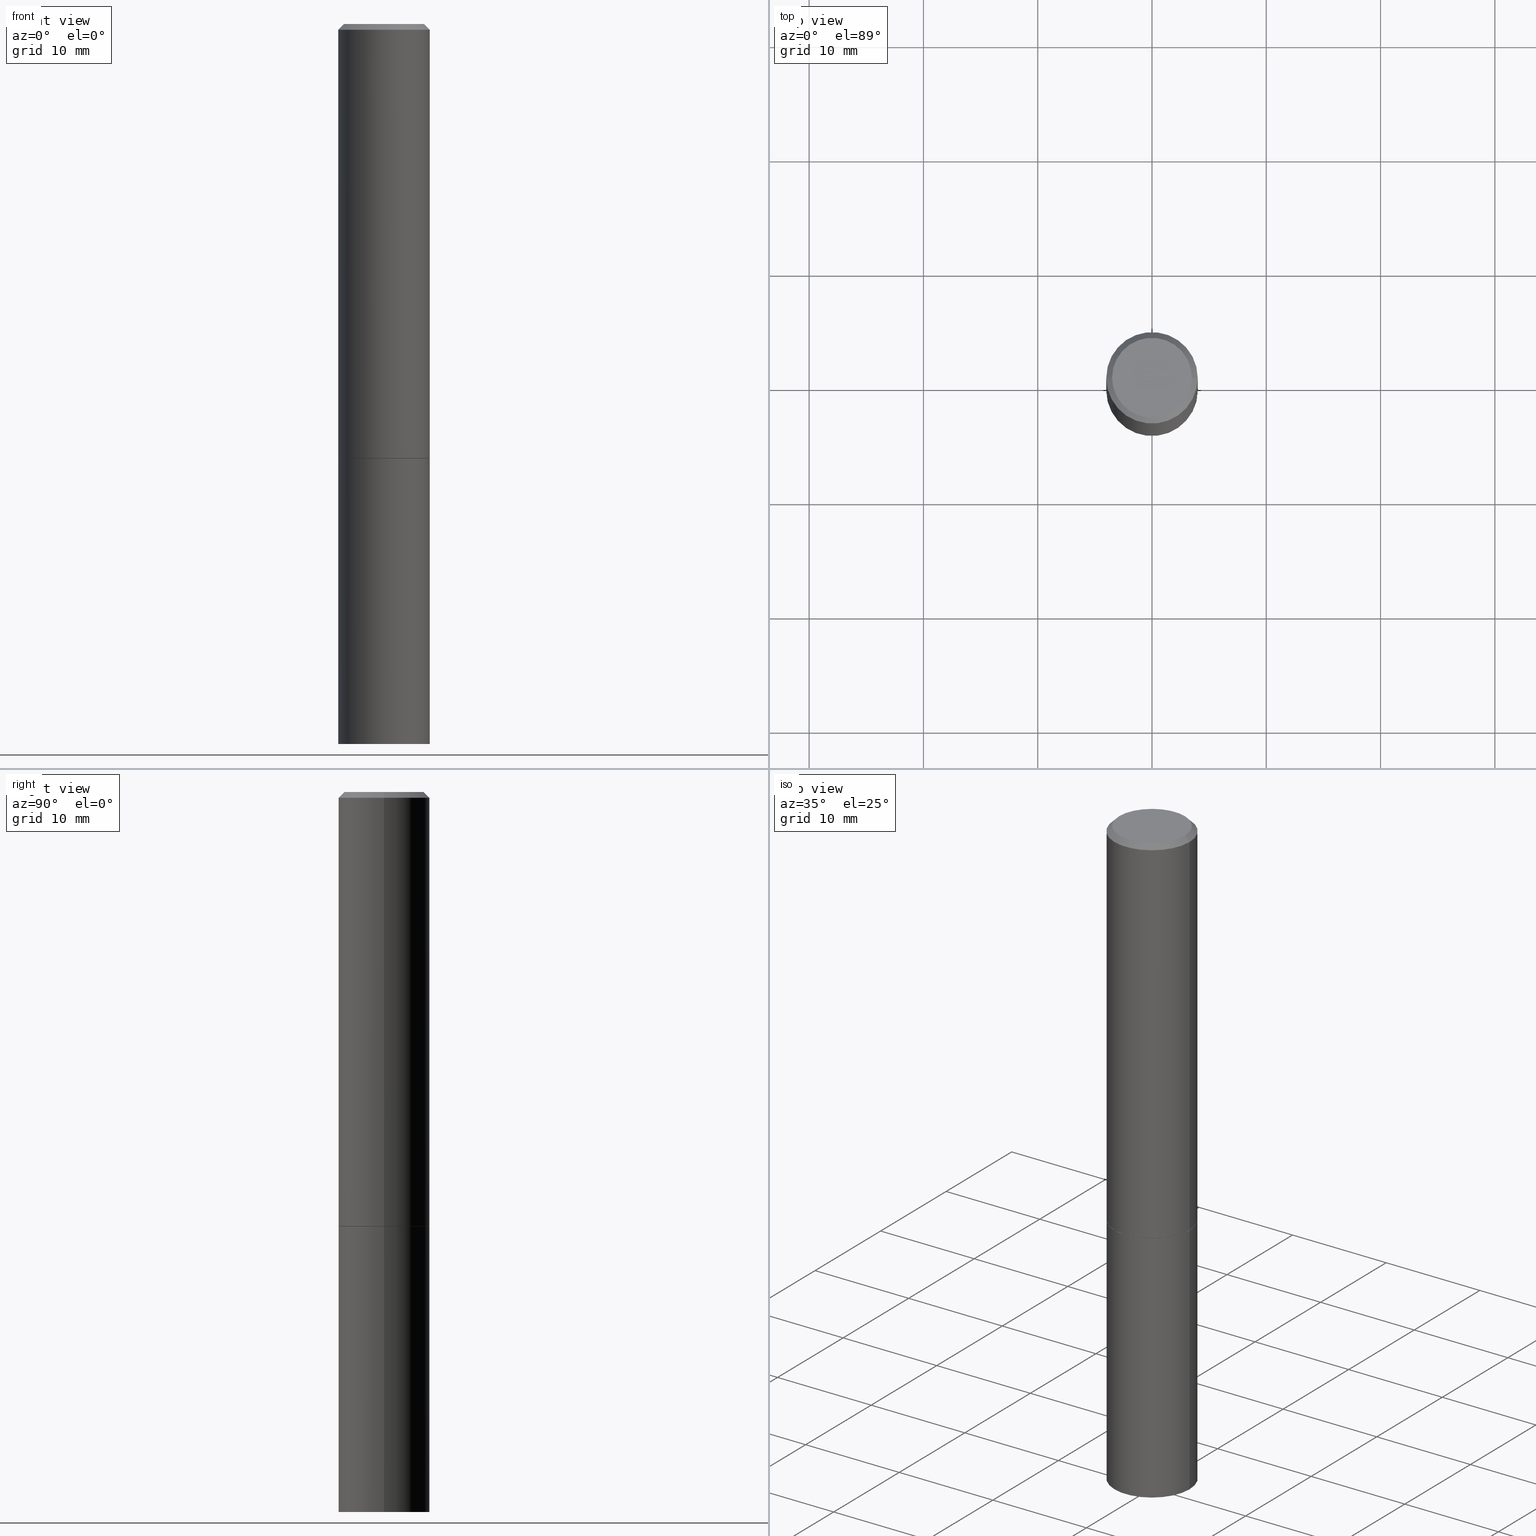
[diagram: canonical four-view strip — front | top / right | iso, engineering-drawing reading convention]
A machine part, canonical four-view strip (front | top / right | iso — engineering-drawing reading convention). The complete STEP part file that produces these views, byte-faithful:
ISO-10303-21;
HEADER;
FILE_DESCRIPTION (( 'STEP AP203' ),
    '1' );
FILE_NAME ('83106.STEP',
    '2024-02-29T23:53:22',
    ( '' ),
    ( '' ),
    'SwSTEP 2.0',
    'SolidWorks 2023',
    '' );
FILE_SCHEMA (( 'CONFIG_CONTROL_DESIGN' ));
ENDSEC;

DATA;
#1 = VECTOR ( 'NONE', #203, 39.37007874015748143 ) ;
#2 = VERTEX_POINT ( 'NONE', #121 ) ;
#3 = PERSON_AND_ORGANIZATION ( #52, #255 ) ;
#4 = ORIENTED_EDGE ( 'NONE', *, *, #162, .F. ) ;
#5 = CARTESIAN_POINT ( 'NONE',  ( 0.1575000000000000011, -1.099816621735586889E-15, 7.679978421878598033E-30 ) ) ;
#6 = PRODUCT ( '83106', '83106', '', ( #195 ) ) ;
#7 = ORIENTED_EDGE ( 'NONE', *, *, #181, .T. ) ;
#8 = ADVANCED_FACE ( 'NONE', ( #44 ), #315, .F. ) ;
#9 = CARTESIAN_POINT ( 'NONE',  ( 0.1574999999999998346, -1.150358061425878091E-15, -0.02000000000000003511 ) ) ;
#10 = VERTEX_POINT ( 'NONE', #261 ) ;
#11 = EDGE_CURVE ( 'NONE', #226, #10, #337, .T. ) ;
#12 = PERSON_AND_ORGANIZATION ( #52, #255 ) ;
#13 = CYLINDRICAL_SURFACE ( 'NONE', #324, 0.1574999999999998901 ) ;
#14 = CC_DESIGN_DATE_AND_TIME_ASSIGNMENT ( #310, #172, ( #27 ) ) ;
#15 = APPROVAL_STATUS ( 'not_yet_approved' ) ;
#16 = DIRECTION ( 'NONE',  ( -2.445468806185136597E-29, 3.491481338843145583E-15, 1.000000000000000000 ) ) ;
#17 = SHAPE_DEFINITION_REPRESENTATION ( #147, #285 ) ;
#18 = DIRECTION ( 'NONE',  ( -2.445468806185136597E-29, 3.491481338843145583E-15, 1.000000000000000000 ) ) ;
#19 = CC_DESIGN_SECURITY_CLASSIFICATION ( #317, ( #343 ) ) ;
#20 = LINE ( 'NONE', #5, #118 ) ;
#21 = CARTESIAN_POINT ( 'NONE',  ( -0.1575000000000000011, -5.822483814998842744E-15, -2.480300000000000171 ) ) ;
#22 = DIRECTION ( 'NONE',  ( 1.000000000000000000, -6.982962677686265922E-15, 4.876176775795935232E-29 ) ) ;
#23 = AXIS2_PLACEMENT_3D ( 'NONE', #38, #257, #294 ) ;
#24 = FACE_OUTER_BOUND ( 'NONE', #45, .T. ) ;
#25 = CARTESIAN_POINT ( 'NONE',  ( -0.1565000000000000002, -4.111256701444791131E-15, -1.496000000000000663 ) ) ;
#26 = APPROVAL_ROLE ( '' ) ;
#27 = PRODUCT_DEFINITION ( 'UNKNOWN', '', #343, #90 ) ;
#28 = CIRCLE ( 'NONE', #227, 0.1574999999999998346 ) ;
#29 = AXIS2_PLACEMENT_3D ( 'NONE', #71, #235, #351 ) ;
#30 = ORIENTED_EDGE ( 'NONE', *, *, #333, .T. ) ;
#31 = APPLICATION_CONTEXT ( 'configuration controlled 3d designs of mechanical parts and assemblies' ) ;
#32 = EDGE_CURVE ( 'NONE', #145, #60, #344, .T. ) ;
#33 = ORIENTED_EDGE ( 'NONE', *, *, #34, .F. ) ;
#34 = EDGE_CURVE ( 'NONE', #253, #2, #330, .T. ) ;
#35 = LOCAL_TIME ( 18, 53, 22.00000000000000000, #127 ) ;
#36 = ORIENTED_EDGE ( 'NONE', *, *, #328, .F. ) ;
#37 = DIRECTION ( 'NONE',  ( 0.7071067811865466846, -7.319954787623252890E-15, -0.7071067811865483499 ) ) ;
#38 = CARTESIAN_POINT ( 'NONE',  ( 3.658421334052965846E-29, -5.223256082909347726E-15, -1.496000000000000663 ) ) ;
#39 = PERSON_AND_ORGANIZATION ( #52, #255 ) ;
#40 = CONICAL_SURFACE ( 'NONE', #312, 0.1574999999999998346, 0.7853981633974471688 ) ;
#41 = CARTESIAN_POINT ( 'NONE',  ( -0.1575000000000000011, -5.822483814998842744E-15, -1.496000000000000441 ) ) ;
#42 = CALENDAR_DATE ( 2024, 29, 2 ) ;
#43 = ORIENTED_EDGE ( 'NONE', *, *, #352, .F. ) ;
#44 = FACE_OUTER_BOUND ( 'NONE', #192, .T. ) ;
#45 = EDGE_LOOP ( 'NONE', ( #4, #276 ) ) ;
#46 = AXIS2_PLACEMENT_3D ( 'NONE', #301, #213, #271 ) ;
#47 = DIRECTION ( 'NONE',  ( -2.445468806185136877E-29, 3.491481338843145188E-15, 1.000000000000000000 ) ) ;
#48 = DIRECTION ( 'NONE',  ( -2.445468806185136597E-29, 3.491481338843145583E-15, 1.000000000000000000 ) ) ;
#49 = FACE_OUTER_BOUND ( 'NONE', #216, .T. ) ;
#50 = APPROVAL ( #140, 'UNSPECIFIED' ) ;
#51 = CARTESIAN_POINT ( 'NONE',  ( -0.1565000000000000002, -4.105958247096567940E-15, -1.496000000000000663 ) ) ;
#52 = PERSON ( 'UNSPECIFIED', 'UNSPECIFIED', 'UNSPECIFIED', ('UNSPECIFIED'), ('UNSPECIFIED'), ('UNSPECIFIED') ) ;
#53 = EDGE_CURVE ( 'NONE', #194, #87, #212, .T. ) ;
#54 = APPLICATION_PROTOCOL_DEFINITION ( 'international standard', 'config_control_design', 1994, #31 ) ;
#55 = AXIS2_PLACEMENT_3D ( 'NONE', #229, #231, #193 ) ;
#56 = ORIENTED_EDGE ( 'NONE', *, *, #57, .F. ) ;
#57 = EDGE_CURVE ( 'NONE', #225, #60, #28, .T. ) ;
#58 = EDGE_LOOP ( 'NONE', ( #91, #307 ) ) ;
#59 = CYLINDRICAL_SURFACE ( 'NONE', #55, 0.1575000000000000011 ) ;
#60 = VERTEX_POINT ( 'NONE', #152 ) ;
#61 =( LENGTH_UNIT ( ) NAMED_UNIT ( * ) SI_UNIT ( $, .METRE. ) );
#62 = ORIENTED_EDGE ( 'NONE', *, *, #283, .T. ) ;
#63 = DIRECTION ( 'NONE',  ( 1.000000000000000000, 0.000000000000000000, 0.000000000000000000 ) ) ;
#64 = FACE_OUTER_BOUND ( 'NONE', #336, .T. ) ;
#65 = CARTESIAN_POINT ( 'NONE',  ( 0.000000000000000000, 0.000000000000000000, 0.000000000000000000 ) ) ;
#66 = CC_DESIGN_PERSON_AND_ORGANIZATION_ASSIGNMENT ( #101, #239, ( #343 ) ) ;
#67 = DIRECTION ( 'NONE',  ( 1.000000000000000000, -6.982962677686268288E-15, 0.000000000000000000 ) ) ;
#68 = MANIFOLD_SOLID_BREP ( 'Body-Move/Copy2[1]', #141 ) ;
#69 = VECTOR ( 'NONE', #37, 39.37007874015748143 ) ;
#70 = DIRECTION ( 'NONE',  ( 1.000000000000000000, -6.982962677686265922E-15, 0.000000000000000000 ) ) ;
#71 = CARTESIAN_POINT ( 'NONE',  ( 4.890937612370281041E-31, -6.982962677686302702E-17, -0.02000000000000003511 ) ) ;
#72 = ADVANCED_FACE ( 'NONE', ( #64 ), #13, .T. ) ;
#73 = DATE_AND_TIME ( #258, #280 ) ;
#74 = DIRECTION ( 'NONE',  ( -0.7071067811865466846, 2.468850131082247989E-15, -0.7071067811865483499 ) ) ;
#75 = CC_DESIGN_DATE_AND_TIME_ASSIGNMENT ( #260, #320, ( #317 ) ) ;
#76 = EDGE_CURVE ( 'NONE', #254, #60, #182, .T. ) ;
#77 = DIRECTION ( 'NONE',  ( 1.000000000000000000, -6.982962677686267499E-15, 0.000000000000000000 ) ) ;
#78 = VECTOR ( 'NONE', #47, 39.37007874015748143 ) ;
#79 = DIRECTION ( 'NONE',  ( 1.000000000000000000, -6.982962677686266711E-15, 4.876176775795935793E-29 ) ) ;
#80 = FACE_OUTER_BOUND ( 'NONE', #191, .T. ) ;
#81 = CARTESIAN_POINT ( 'NONE',  ( 6.065496279980994755E-29, -8.659921164732655335E-15, -2.480300000000000171 ) ) ;
#82 = APPROVAL_PERSON_ORGANIZATION ( #153, #217, #180 ) ;
#83 = DIRECTION ( 'NONE',  ( 1.000000000000000000, -6.982962677686267499E-15, 0.000000000000000000 ) ) ;
#84 = ORIENTED_EDGE ( 'NONE', *, *, #11, .T. ) ;
#85 = CIRCLE ( 'NONE', #355, 0.1575000000000000011 ) ;
#86 = ORIENTED_EDGE ( 'NONE', *, *, #319, .T. ) ;
#87 = VERTEX_POINT ( 'NONE', #41 ) ;
#88 = DATE_AND_TIME ( #122, #240 ) ;
#89 = ORIENTED_EDGE ( 'NONE', *, *, #219, .F. ) ;
#90 = DESIGN_CONTEXT ( 'detailed design', #270, 'design' ) ;
#91 = ORIENTED_EDGE ( 'NONE', *, *, #53, .T. ) ;
#92 = DIRECTION ( 'NONE',  ( 1.000000000000000000, -6.982962677686268288E-15, 0.000000000000000000 ) ) ;
#93 = DIRECTION ( 'NONE',  ( 1.000000000000000000, -6.982962677686265922E-15, 4.876176775795935793E-29 ) ) ;
#94 = PERSON_AND_ORGANIZATION_ROLE ( 'creator' ) ;
#95 = UNCERTAINTY_MEASURE_WITH_UNIT (LENGTH_MEASURE( 1.000000000000000082E-05 ), #197, 'distance_accuracy_value', 'NONE');
#96 = DIRECTION ( 'NONE',  ( -2.445468806185136597E-29, 3.491481338843145583E-15, 1.000000000000000000 ) ) ;
#97 = CARTESIAN_POINT ( 'NONE',  ( 3.658421334052965846E-29, -5.223256082909347726E-15, -1.496000000000000663 ) ) ;
#98 = ADVANCED_FACE ( 'NONE', ( #150 ), #273, .T. ) ;
#99 = DIRECTION ( 'NONE',  ( -2.445468806185136597E-29, 3.491481338843145583E-15, 1.000000000000000000 ) ) ;
#100 = CARTESIAN_POINT ( 'NONE',  ( -0.1374999999999998446, 9.950721815702915469E-16, 8.537024980193986277E-18 ) ) ;
#101 = PERSON_AND_ORGANIZATION ( #52, #255 ) ;
#102 = AXIS2_PLACEMENT_3D ( 'NONE', #185, #296, #329 ) ;
#103 = CARTESIAN_POINT ( 'NONE',  ( 0.1575000000000000011, -6.319581223306091410E-15, -1.495000000000000329 ) ) ;
#104 = CARTESIAN_POINT ( 'NONE',  ( 1.099816621735647434E-15, 0.1574999999999913136, -2.480300000000001059 ) ) ;
#105 = DIRECTION ( 'NONE',  ( -1.000000000000000000, 6.982962677686265922E-15, -4.876176775795935793E-29 ) ) ;
#106 = CARTESIAN_POINT ( 'NONE',  ( 3.658421334052965846E-29, -5.223256082909347726E-15, -1.496000000000000663 ) ) ;
#107 = CIRCLE ( 'NONE', #234, 0.1575000000000000011 ) ;
#108 = LINE ( 'NONE', #9, #69 ) ;
#109 = VERTEX_POINT ( 'NONE', #123 ) ;
#110 = ORIENTED_EDGE ( 'NONE', *, *, #222, .F. ) ;
#111 = ORIENTED_EDGE ( 'NONE', *, *, #333, .F. ) ;
#112 = AXIS2_PLACEMENT_3D ( 'NONE', #174, #18, #206 ) ;
#113 = AXIS2_PLACEMENT_3D ( 'NONE', #65, #287, #63 ) ;
#114 = APPLICATION_PROTOCOL_DEFINITION ( 'international standard', 'config_control_design', 1994, #270 ) ;
#115 = ORIENTED_EDGE ( 'NONE', *, *, #53, .F. ) ;
#116 = DIRECTION ( 'NONE',  ( -2.438088387897960049E-29, 3.491481338843145188E-15, 1.000000000000000000 ) ) ;
#117 = EDGE_CURVE ( 'NONE', #145, #109, #311, .T. ) ;
#118 = VECTOR ( 'NONE', #224, 39.37007874015748143 ) ;
#119 = DIRECTION ( 'NONE',  ( -2.445468806185136597E-29, 3.491481338843145583E-15, 1.000000000000000000 ) ) ;
#120 = CIRCLE ( 'NONE', #220, 0.1565000000000000002 ) ;
#121 = CARTESIAN_POINT ( 'NONE',  ( 0.1565000000000000002, -6.316089741967248403E-15, -1.496000000000000663 ) ) ;
#122 = CALENDAR_DATE ( 2024, 29, 2 ) ;
#123 = CARTESIAN_POINT ( 'NONE',  ( 0.1374999999999998446, -1.046838268059731308E-15, 8.537024980207840646E-18 ) ) ;
#124 = APPROVAL_DATE_TIME ( #73, #217 ) ;
#125 = EDGE_CURVE ( 'NONE', #60, #225, #177, .T. ) ;
#126 = LINE ( 'NONE', #233, #1 ) ;
#127 = COORDINATED_UNIVERSAL_TIME_OFFSET ( 5, 0, .BEHIND. ) ;
#128 = CC_DESIGN_APPROVAL ( #217, ( #317 ) ) ;
#129 = CC_DESIGN_PERSON_AND_ORGANIZATION_ASSIGNMENT ( #292, #295, ( #343 ) ) ;
#130 = DIRECTION ( 'NONE',  ( 1.000000000000000000, -6.982962677686265922E-15, 0.000000000000000000 ) ) ;
#131 = PLANE ( 'NONE',  #305 ) ;
#132 = DIRECTION ( 'NONE',  ( -2.445468806185136597E-29, 3.491481338843145583E-15, 1.000000000000000000 ) ) ;
#133 = CLOSED_SHELL ( 'NONE', ( #98, #72, #142, #290, #266, #250, #8, #204 ) ) ;
#134 = AXIS2_PLACEMENT_3D ( 'NONE', #242, #48, #160 ) ;
#135 = DIRECTION ( 'NONE',  ( -2.445468806185136597E-29, 3.491481338843145583E-15, 1.000000000000000000 ) ) ;
#136 = FACE_OUTER_BOUND ( 'NONE', #277, .T. ) ;
#137 = EDGE_CURVE ( 'NONE', #249, #225, #126, .T. ) ;
#138 = CARTESIAN_POINT ( 'NONE',  ( -0.1575000000000000011, -1.525692305351524236E-15, -1.495000000000000329 ) ) ;
#139 = DIMENSIONAL_EXPONENTS ( 1.000000000000000000, 0.000000000000000000, 0.000000000000000000, 0.000000000000000000, 0.000000000000000000, 0.000000000000000000, 0.000000000000000000 ) ;
#140 = APPROVAL_STATUS ( 'not_yet_approved' ) ;
#141 = CLOSED_SHELL ( 'NONE', ( #214, #187, #304, #356 ) ) ;
#142 = ADVANCED_FACE ( 'NONE', ( #318 ), #300, .T. ) ;
#143 = AXIS2_PLACEMENT_3D ( 'NONE', #252, #347, #170 ) ;
#144 = ORIENTED_EDGE ( 'NONE', *, *, #34, .T. ) ;
#145 = VERTEX_POINT ( 'NONE', #100 ) ;
#146 = AXIS2_PLACEMENT_3D ( 'NONE', #327, #207, #22 ) ;
#147 = PRODUCT_DEFINITION_SHAPE ( 'NONE', 'NONE',  #27 ) ;
#148 = ORIENTED_EDGE ( 'NONE', *, *, #181, .F. ) ;
#149 = PERSON_AND_ORGANIZATION_ROLE ( 'design_owner' ) ;
#150 = FACE_OUTER_BOUND ( 'NONE', #339, .T. ) ;
#151 = PERSON_AND_ORGANIZATION_ROLE ( 'classification_officer' ) ;
#152 = CARTESIAN_POINT ( 'NONE',  ( -0.1574999999999998346, 1.029986994958722604E-15, -0.02000000000000003511 ) ) ;
#153 = PERSON_AND_ORGANIZATION ( #52, #255 ) ;
#154 = CARTESIAN_POINT ( 'NONE',  ( 3.658421334052965846E-29, -5.223256082909347726E-15, -1.496000000000000663 ) ) ;
#155 = DATE_AND_TIME ( #362, #361 ) ;
#156 = AXIS2_PLACEMENT_3D ( 'NONE', #232, #96, #201 ) ;
#157 = DIRECTION ( 'NONE',  ( -1.000000000000000000, 6.982962677686265922E-15, -4.876176775795935793E-29 ) ) ;
#158 = DIRECTION ( 'NONE',  ( 1.000000000000000000, -6.982962677686261977E-15, 0.000000000000000000 ) ) ;
#159 = PERSON_AND_ORGANIZATION ( #52, #255 ) ;
#160 = DIRECTION ( 'NONE',  ( 1.000000000000000000, -6.982962677686265922E-15, 4.876173381029105647E-29 ) ) ;
#161 = CARTESIAN_POINT ( 'NONE',  ( 3.658421334052965846E-29, -5.223256082909347726E-15, -1.496000000000000663 ) ) ;
#162 = EDGE_CURVE ( 'NONE', #10, #226, #107, .T. ) ;
#163 = CARTESIAN_POINT ( 'NONE',  ( 0.1565000000000000002, -6.316089741967248403E-15, -1.496000000000000663 ) ) ;
#164 = COORDINATED_UNIVERSAL_TIME_OFFSET ( 5, 0, .BEHIND. ) ;
#165 = VECTOR ( 'NONE', #286, 39.37007874015748143 ) ;
#166 = VECTOR ( 'NONE', #323, 39.37007874015748143 ) ;
#167 = ORIENTED_EDGE ( 'NONE', *, *, #76, .F. ) ;
#168 = ORIENTED_EDGE ( 'NONE', *, *, #57, .T. ) ;
#169 = ORIENTED_EDGE ( 'NONE', *, *, #283, .F. ) ;
#170 = DIRECTION ( 'NONE',  ( 1.000000000000000000, -6.982962677686268288E-15, 0.000000000000000000 ) ) ;
#171 = ORIENTED_EDGE ( 'NONE', *, *, #358, .T. ) ;
#172 = DATE_TIME_ROLE ( 'creation_date' ) ;
#173 = APPROVAL_STATUS ( 'not_yet_approved' ) ;
#174 = CARTESIAN_POINT ( 'NONE',  ( 6.065496279980994755E-29, -8.659921164732655335E-15, -2.480300000000000171 ) ) ;
#175 = CARTESIAN_POINT ( 'NONE',  ( 4.890937612370281041E-31, -6.982962677686302702E-17, -0.02000000000000003511 ) ) ;
#176 = AXIS2_PLACEMENT_3D ( 'NONE', #97, #346, #314 ) ;
#177 = CIRCLE ( 'NONE', #331, 0.1574999999999998346 ) ;
#178 = DIRECTION ( 'NONE',  ( -2.445468806185136597E-29, 3.491481338843145583E-15, 1.000000000000000000 ) ) ;
#179 = ORIENTED_EDGE ( 'NONE', *, *, #76, .T. ) ;
#180 = APPROVAL_ROLE ( '' ) ;
#181 = EDGE_CURVE ( 'NONE', #2, #249, #184, .T. ) ;
#182 = LINE ( 'NONE', #288, #165 ) ;
#183 = AXIS2_PLACEMENT_3D ( 'NONE', #210, #326, #79 ) ;
#184 = LINE ( 'NONE', #163, #166 ) ;
#185 = CARTESIAN_POINT ( 'NONE',  ( 9.601573681818602922E-16, 0.1374999999999998446, -4.758101716008314943E-16 ) ) ;
#186 = CARTESIAN_POINT ( 'NONE',  ( 4.890937612370281041E-31, -6.982962677686302702E-17, -0.02000000000000003511 ) ) ;
#187 = ADVANCED_FACE ( 'NONE', ( #24 ), #131, .T. ) ;
#188 = CC_DESIGN_APPROVAL ( #50, ( #343 ) ) ;
#189 = CARTESIAN_POINT ( 'NONE',  ( -0.1575000000000000011, 1.119104808822157801E-15, -7.747322767151475583E-30 ) ) ;
#190 = DIRECTION ( 'NONE',  ( -0.7071067811864267805, 7.493145998869918709E-15, 0.7071067811866682540 ) ) ;
#191 = EDGE_LOOP ( 'NONE', ( #111, #316, #335, #218 ) ) ;
#192 = EDGE_LOOP ( 'NONE', ( #363, #33 ) ) ;
#193 = DIRECTION ( 'NONE',  ( 1.000000000000000000, -6.982962677686265922E-15, 4.876176775795935232E-29 ) ) ;
#194 = VERTEX_POINT ( 'NONE', #303 ) ;
#195 = MECHANICAL_CONTEXT ( 'NONE', #31, 'mechanical' ) ;
#196 = VECTOR ( 'NONE', #190, 39.37007874015748143 ) ;
#197 =( CONVERSION_BASED_UNIT ( 'INCH', #334 ) LENGTH_UNIT ( ) NAMED_UNIT ( #139 ) );
#198 = CARTESIAN_POINT ( 'NONE',  ( 0.000000000000000000, 0.000000000000000000, 0.000000000000000000 ) ) ;
#199 =( NAMED_UNIT ( * ) PLANE_ANGLE_UNIT ( ) SI_UNIT ( $, .RADIAN. ) );
#200 = EDGE_LOOP ( 'NONE', ( #89, #84, #364, #43 ) ) ;
#201 = DIRECTION ( 'NONE',  ( 1.000000000000000000, -6.982962677686265922E-15, 4.876173381029105647E-29 ) ) ;
#202 = CIRCLE ( 'NONE', #134, 0.1374999999999998446 ) ;
#203 = DIRECTION ( 'NONE',  ( -2.445468806185136877E-29, 3.491481338843145188E-15, 1.000000000000000000 ) ) ;
#204 = ADVANCED_FACE ( 'NONE', ( #49 ), #354, .F. ) ;
#205 = COORDINATED_UNIVERSAL_TIME_OFFSET ( 5, 0, .BEHIND. ) ;
#206 = DIRECTION ( 'NONE',  ( 1.000000000000000000, -6.982962677686261977E-15, 0.000000000000000000 ) ) ;
#207 = DIRECTION ( 'NONE',  ( -2.445468806185136597E-29, 3.491481338843145583E-15, 1.000000000000000000 ) ) ;
#208 = SECURITY_CLASSIFICATION_LEVEL ( 'unclassified' ) ;
#209 = AXIS2_PLACEMENT_3D ( 'NONE', #161, #132, #77 ) ;
#210 = CARTESIAN_POINT ( 'NONE',  ( 0.000000000000000000, 0.000000000000000000, 0.000000000000000000 ) ) ;
#211 = DIRECTION ( 'NONE',  ( 2.438088387897960049E-29, -3.491481338843145188E-15, -1.000000000000000000 ) ) ;
#212 = CIRCLE ( 'NONE', #262, 0.1575000000000000011 ) ;
#213 = DIRECTION ( 'NONE',  ( -2.445468806185136597E-29, 3.491481338843145583E-15, 1.000000000000000000 ) ) ;
#214 = ADVANCED_FACE ( 'NONE', ( #136 ), #241, .T. ) ;
#215 = FACE_OUTER_BOUND ( 'NONE', #200, .T. ) ;
#216 = EDGE_LOOP ( 'NONE', ( #251, #62 ) ) ;
#217 = APPROVAL ( #15, 'UNSPECIFIED' ) ;
#218 = ORIENTED_EDGE ( 'NONE', *, *, #125, .T. ) ;
#219 = EDGE_CURVE ( 'NONE', #226, #87, #353, .T. ) ;
#220 = AXIS2_PLACEMENT_3D ( 'NONE', #106, #332, #83 ) ;
#221 = ORIENTED_EDGE ( 'NONE', *, *, #125, .F. ) ;
#222 = EDGE_CURVE ( 'NONE', #254, #249, #325, .T. ) ;
#223 = ORIENTED_EDGE ( 'NONE', *, *, #162, .T. ) ;
#224 = DIRECTION ( 'NONE',  ( -2.445468806185136877E-29, 3.491481338843145188E-15, 1.000000000000000000 ) ) ;
#225 = VERTEX_POINT ( 'NONE', #267 ) ;
#226 = VERTEX_POINT ( 'NONE', #21 ) ;
#227 = AXIS2_PLACEMENT_3D ( 'NONE', #175, #99, #70 ) ;
#228 = CIRCLE ( 'NONE', #143, 0.1575000000000000011 ) ;
#229 = CARTESIAN_POINT ( 'NONE',  ( 0.000000000000000000, 0.000000000000000000, 0.000000000000000000 ) ) ;
#230 = CARTESIAN_POINT ( 'NONE',  ( -0.1574999999999998346, 1.029986994958722604E-15, -0.02000000000000003511 ) ) ;
#231 = DIRECTION ( 'NONE',  ( -2.445468806185136597E-29, 3.491481338843145583E-15, 1.000000000000000000 ) ) ;
#232 = CARTESIAN_POINT ( 'NONE',  ( -2.087702828670439639E-46, 2.980686340760894400E-32, 8.537024980200822558E-18 ) ) ;
#233 = CARTESIAN_POINT ( 'NONE',  ( 0.1574999999999998901, -1.099816621735586297E-15, 7.679978421878593829E-30 ) ) ;
#234 = AXIS2_PLACEMENT_3D ( 'NONE', #81, #135, #158 ) ;
#235 = DIRECTION ( 'NONE',  ( 2.445468806185136597E-29, -3.491481338843145583E-15, -1.000000000000000000 ) ) ;
#236 = APPROVAL ( #173, 'UNSPECIFIED' ) ;
#237 = DIRECTION ( 'NONE',  ( 2.438088387897960049E-29, -3.491481338843145188E-15, -1.000000000000000000 ) ) ;
#238 = FACE_OUTER_BOUND ( 'NONE', #247, .T. ) ;
#239 = PERSON_AND_ORGANIZATION_ROLE ( 'design_supplier' ) ;
#240 = LOCAL_TIME ( 18, 53, 22.00000000000000000, #340 ) ;
#241 = CYLINDRICAL_SURFACE ( 'NONE', #146, 0.1575000000000000011 ) ;
#242 = CARTESIAN_POINT ( 'NONE',  ( -2.087702828670439639E-46, 2.980686340760894400E-32, 8.537024980200822558E-18 ) ) ;
#243 = DIRECTION ( 'NONE',  ( 2.445468806185136597E-29, -3.491481338843145583E-15, -1.000000000000000000 ) ) ;
#244 = EDGE_CURVE ( 'NONE', #253, #254, #265, .T. ) ;
#245 = CONICAL_SURFACE ( 'NONE', #209, 0.1565000000000000002, 0.7853981633972775267 ) ;
#246 = COORDINATED_UNIVERSAL_TIME_OFFSET ( 5, 0, .BEHIND. ) ;
#247 = EDGE_LOOP ( 'NONE', ( #167, #275, #313, #221 ) ) ;
#248 = APPROVAL_PERSON_ORGANIZATION ( #39, #236, #256 ) ;
#249 = VERTEX_POINT ( 'NONE', #103 ) ;
#250 = ADVANCED_FACE ( 'NONE', ( #297 ), #245, .T. ) ;
#251 = ORIENTED_EDGE ( 'NONE', *, *, #117, .T. ) ;
#252 = CARTESIAN_POINT ( 'NONE',  ( 3.655975865246779683E-29, -5.219764601570503930E-15, -1.495000000000000329 ) ) ;
#253 = VERTEX_POINT ( 'NONE', #51 ) ;
#254 = VERTEX_POINT ( 'NONE', #138 ) ;
#255 = ORGANIZATION ( 'UNSPECIFIED', 'UNSPECIFIED', '' ) ;
#256 = APPROVAL_ROLE ( '' ) ;
#257 = DIRECTION ( 'NONE',  ( -2.445468806185136597E-29, 3.491481338843145583E-15, 1.000000000000000000 ) ) ;
#258 = CALENDAR_DATE ( 2024, 29, 2 ) ;
#259 = DIRECTION ( 'NONE',  ( 1.000000000000000000, -6.982962677686266711E-15, 4.876176775795935793E-29 ) ) ;
#260 = DATE_AND_TIME ( #42, #35 ) ;
#261 = CARTESIAN_POINT ( 'NONE',  ( 0.1575000000000000011, -9.759737786468242027E-15, -2.480300000000000171 ) ) ;
#262 = AXIS2_PLACEMENT_3D ( 'NONE', #348, #178, #67 ) ;
#263 =( GEOMETRIC_REPRESENTATION_CONTEXT ( 3 ) GLOBAL_UNCERTAINTY_ASSIGNED_CONTEXT ( ( #95 ) ) GLOBAL_UNIT_ASSIGNED_CONTEXT ( ( #197, #199, #342 ) ) REPRESENTATION_CONTEXT ( 'NONE', 'WORKASPACE' ) );
#264 = APPROVAL_DATE_TIME ( #155, #50 ) ;
#265 = LINE ( 'NONE', #25, #196 ) ;
#266 = ADVANCED_FACE ( 'NONE', ( #238 ), #357, .T. ) ;
#267 = CARTESIAN_POINT ( 'NONE',  ( 0.1574999999999998346, -1.150358061425878091E-15, -0.02000000000000003511 ) ) ;
#268 = LOCAL_TIME ( 18, 53, 22.00000000000000000, #164 ) ;
#269 = PLANE ( 'NONE',  #274 ) ;
#270 = APPLICATION_CONTEXT ( 'configuration controlled 3d designs of mechanical parts and assemblies' ) ;
#271 = DIRECTION ( 'NONE',  ( 1.000000000000000000, -6.982962677686268288E-15, 0.000000000000000000 ) ) ;
#272 = PERSON_AND_ORGANIZATION ( #52, #255 ) ;
#273 = CONICAL_SURFACE ( 'NONE', #23, 0.1565000000000000002, 0.7853981633972775267 ) ;
#274 = AXIS2_PLACEMENT_3D ( 'NONE', #359, #237, #105 ) ;
#275 = ORIENTED_EDGE ( 'NONE', *, *, #222, .T. ) ;
#276 = ORIENTED_EDGE ( 'NONE', *, *, #11, .F. ) ;
#277 = EDGE_LOOP ( 'NONE', ( #223, #308, #115, #36 ) ) ;
#278 = CC_DESIGN_PERSON_AND_ORGANIZATION_ASSIGNMENT ( #159, #151, ( #317 ) ) ;
#279 = VECTOR ( 'NONE', #74, 39.37007874015748143 ) ;
#280 = LOCAL_TIME ( 18, 53, 22.00000000000000000, #205 ) ;
#281 = ORIENTED_EDGE ( 'NONE', *, *, #32, .F. ) ;
#282 = APPROVAL_DATE_TIME ( #88, #236 ) ;
#283 = EDGE_CURVE ( 'NONE', #109, #145, #202, .T. ) ;
#284 = CALENDAR_DATE ( 2024, 29, 2 ) ;
#285 = ADVANCED_BREP_SHAPE_REPRESENTATION ( '83106', ( #68, #309, #113 ), #263 ) ;
#286 = DIRECTION ( 'NONE',  ( -2.445468806185136877E-29, 3.491481338843145188E-15, 1.000000000000000000 ) ) ;
#287 = DIRECTION ( 'NONE',  ( 0.000000000000000000, 0.000000000000000000, 1.000000000000000000 ) ) ;
#288 = CARTESIAN_POINT ( 'NONE',  ( -0.1574999999999998901, 1.119104808822157012E-15, -7.747322767151471379E-30 ) ) ;
#289 = CC_DESIGN_APPROVAL ( #236, ( #27 ) ) ;
#290 = ADVANCED_FACE ( 'NONE', ( #80 ), #40, .T. ) ;
#291 = CARTESIAN_POINT ( 'NONE',  ( 4.890937612370281041E-31, -6.982962677686302702E-17, -0.02000000000000003511 ) ) ;
#292 = PERSON_AND_ORGANIZATION ( #52, #255 ) ;
#293 = EDGE_LOOP ( 'NONE', ( #341, #144, #7, #110 ) ) ;
#294 = DIRECTION ( 'NONE',  ( 1.000000000000000000, -6.982962677686267499E-15, 0.000000000000000000 ) ) ;
#295 = PERSON_AND_ORGANIZATION_ROLE ( 'creator' ) ;
#296 = DIRECTION ( 'NONE',  ( 2.438088387897960049E-29, -3.491481338843145188E-15, -1.000000000000000000 ) ) ;
#297 = FACE_OUTER_BOUND ( 'NONE', #293, .T. ) ;
#298 = PRODUCT_RELATED_PRODUCT_CATEGORY ( 'detail', '', ( #6 ) ) ;
#299 = DIRECTION ( 'NONE',  ( -1.000000000000000000, 6.982962677686265922E-15, 0.000000000000000000 ) ) ;
#300 = CONICAL_SURFACE ( 'NONE', #29, 0.1574999999999998346, 0.7853981633974471688 ) ;
#301 = CARTESIAN_POINT ( 'NONE',  ( 3.655975865246779683E-29, -5.219764601570503930E-15, -1.495000000000000329 ) ) ;
#302 = CC_DESIGN_PERSON_AND_ORGANIZATION_ASSIGNMENT ( #3, #149, ( #6 ) ) ;
#303 = CARTESIAN_POINT ( 'NONE',  ( 0.1575000000000000011, -6.323072704644934417E-15, -1.496000000000000441 ) ) ;
#304 = ADVANCED_FACE ( 'NONE', ( #360 ), #269, .F. ) ;
#305 = AXIS2_PLACEMENT_3D ( 'NONE', #104, #211, #157 ) ;
#306 = ORIENTED_EDGE ( 'NONE', *, *, #244, .T. ) ;
#307 = ORIENTED_EDGE ( 'NONE', *, *, #352, .T. ) ;
#308 = ORIENTED_EDGE ( 'NONE', *, *, #219, .T. ) ;
#309 = MANIFOLD_SOLID_BREP ( 'Body-Move/Copy2[2]', #133 ) ;
#310 = DATE_AND_TIME ( #284, #268 ) ;
#311 = CIRCLE ( 'NONE', #156, 0.1374999999999998446 ) ;
#312 = AXIS2_PLACEMENT_3D ( 'NONE', #186, #243, #299 ) ;
#313 = ORIENTED_EDGE ( 'NONE', *, *, #137, .T. ) ;
#314 = DIRECTION ( 'NONE',  ( 1.000000000000000000, -6.982962677686267499E-15, 0.000000000000000000 ) ) ;
#315 = PLANE ( 'NONE',  #366 ) ;
#316 = ORIENTED_EDGE ( 'NONE', *, *, #117, .F. ) ;
#317 = SECURITY_CLASSIFICATION ( '', '', #208 ) ;
#318 = FACE_OUTER_BOUND ( 'NONE', #338, .T. ) ;
#319 = EDGE_CURVE ( 'NONE', #2, #253, #120, .T. ) ;
#320 = DATE_TIME_ROLE ( 'classification_date' ) ;
#321 = DIRECTION ( 'NONE',  ( -2.445468806185136597E-29, 3.491481338843145583E-15, 1.000000000000000000 ) ) ;
#322 = CC_DESIGN_PERSON_AND_ORGANIZATION_ASSIGNMENT ( #12, #94, ( #27 ) ) ;
#323 = DIRECTION ( 'NONE',  ( 0.7071067811864267805, -2.468850131080992517E-15, 0.7071067811866682540 ) ) ;
#324 = AXIS2_PLACEMENT_3D ( 'NONE', #198, #321, #259 ) ;
#325 = CIRCLE ( 'NONE', #46, 0.1575000000000000011 ) ;
#326 = DIRECTION ( 'NONE',  ( -2.445468806185136597E-29, 3.491481338843145583E-15, 1.000000000000000000 ) ) ;
#327 = CARTESIAN_POINT ( 'NONE',  ( 0.000000000000000000, 0.000000000000000000, 0.000000000000000000 ) ) ;
#328 = EDGE_CURVE ( 'NONE', #10, #194, #20, .T. ) ;
#329 = DIRECTION ( 'NONE',  ( -1.000000000000000000, 6.982962677686265922E-15, -4.876176775795935793E-29 ) ) ;
#330 = CIRCLE ( 'NONE', #176, 0.1565000000000000002 ) ;
#331 = AXIS2_PLACEMENT_3D ( 'NONE', #291, #16, #130 ) ;
#332 = DIRECTION ( 'NONE',  ( -2.445468806185136597E-29, 3.491481338843145583E-15, 1.000000000000000000 ) ) ;
#333 = EDGE_CURVE ( 'NONE', #109, #225, #108, .T. ) ;
#334 = LENGTH_MEASURE_WITH_UNIT ( LENGTH_MEASURE( 0.02539999999999999897 ), #61 );
#335 = ORIENTED_EDGE ( 'NONE', *, *, #32, .T. ) ;
#336 = EDGE_LOOP ( 'NONE', ( #171, #179, #56, #349 ) ) ;
#337 = CIRCLE ( 'NONE', #112, 0.1575000000000000011 ) ;
#338 = EDGE_LOOP ( 'NONE', ( #169, #30, #168, #281 ) ) ;
#339 = EDGE_LOOP ( 'NONE', ( #86, #306, #365, #148 ) ) ;
#340 = COORDINATED_UNIVERSAL_TIME_OFFSET ( 5, 0, .BEHIND. ) ;
#341 = ORIENTED_EDGE ( 'NONE', *, *, #244, .F. ) ;
#342 =( NAMED_UNIT ( * ) SI_UNIT ( $, .STERADIAN. ) SOLID_ANGLE_UNIT ( ) );
#343 = PRODUCT_DEFINITION_FORMATION_WITH_SPECIFIED_SOURCE ( 'ANY', '', #6, .NOT_KNOWN. ) ;
#344 = LINE ( 'NONE', #230, #279 ) ;
#345 = CARTESIAN_POINT ( 'NONE',  ( 3.658421334052965286E-29, -5.223256082909346937E-15, -1.496000000000000441 ) ) ;
#346 = DIRECTION ( 'NONE',  ( -2.445468806185136597E-29, 3.491481338843145583E-15, 1.000000000000000000 ) ) ;
#347 = DIRECTION ( 'NONE',  ( -2.445468806185136597E-29, 3.491481338843145583E-15, 1.000000000000000000 ) ) ;
#348 = CARTESIAN_POINT ( 'NONE',  ( 3.658421334052965286E-29, -5.223256082909346937E-15, -1.496000000000000441 ) ) ;
#349 = ORIENTED_EDGE ( 'NONE', *, *, #137, .F. ) ;
#350 = APPROVAL_PERSON_ORGANIZATION ( #272, #50, #26 ) ;
#351 = DIRECTION ( 'NONE',  ( -1.000000000000000000, 6.982962677686265922E-15, 0.000000000000000000 ) ) ;
#352 = EDGE_CURVE ( 'NONE', #87, #194, #85, .T. ) ;
#353 = LINE ( 'NONE', #189, #78 ) ;
#354 = PLANE ( 'NONE',  #102 ) ;
#355 = AXIS2_PLACEMENT_3D ( 'NONE', #345, #119, #92 ) ;
#356 = ADVANCED_FACE ( 'NONE', ( #215 ), #59, .T. ) ;
#357 = CYLINDRICAL_SURFACE ( 'NONE', #183, 0.1574999999999998901 ) ;
#358 = EDGE_CURVE ( 'NONE', #249, #254, #228, .T. ) ;
#359 = CARTESIAN_POINT ( 'NONE',  ( 1.099816621735623373E-15, 0.1574999999999947553, -1.496000000000000885 ) ) ;
#360 = FACE_OUTER_BOUND ( 'NONE', #58, .T. ) ;
#361 = LOCAL_TIME ( 18, 53, 22.00000000000000000, #246 ) ;
#362 = CALENDAR_DATE ( 2024, 29, 2 ) ;
#363 = ORIENTED_EDGE ( 'NONE', *, *, #319, .F. ) ;
#364 = ORIENTED_EDGE ( 'NONE', *, *, #328, .T. ) ;
#365 = ORIENTED_EDGE ( 'NONE', *, *, #358, .F. ) ;
#366 = AXIS2_PLACEMENT_3D ( 'NONE', #154, #116, #93 ) ;
ENDSEC;
END-ISO-10303-21;
